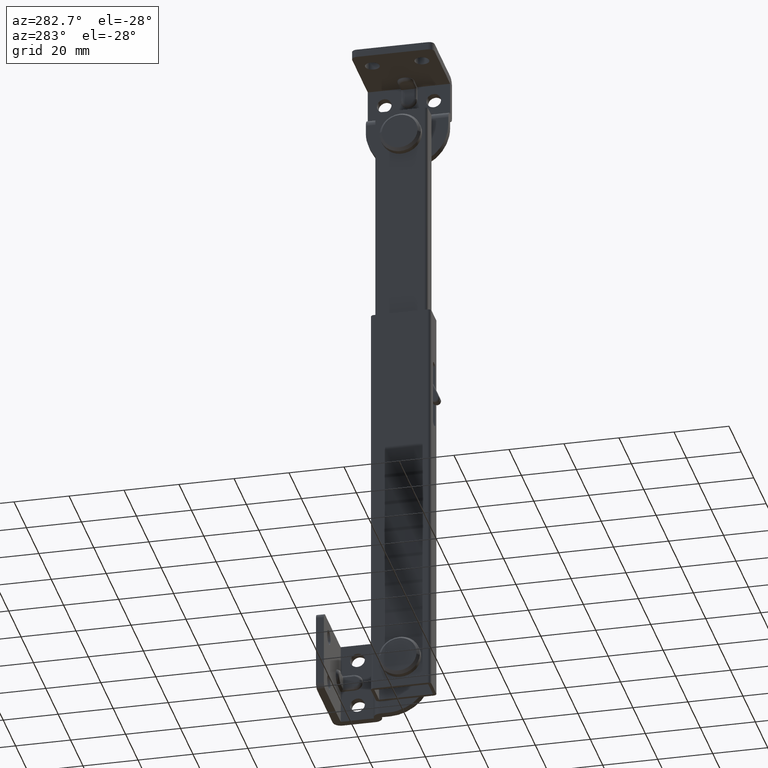
[diagram: clean part render]
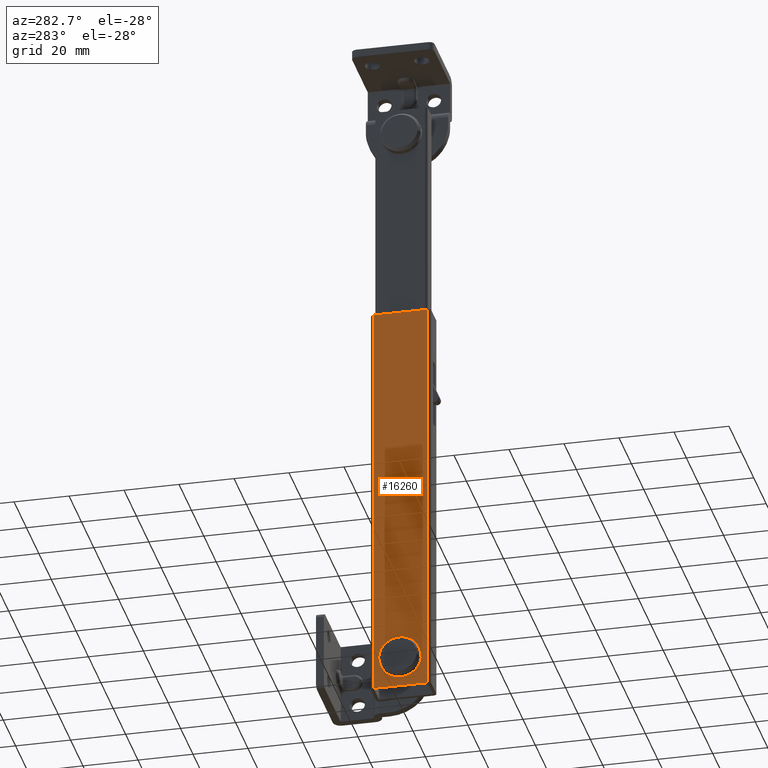
[diagram: same view with one face highlighted and labeled with its STEP entity id]
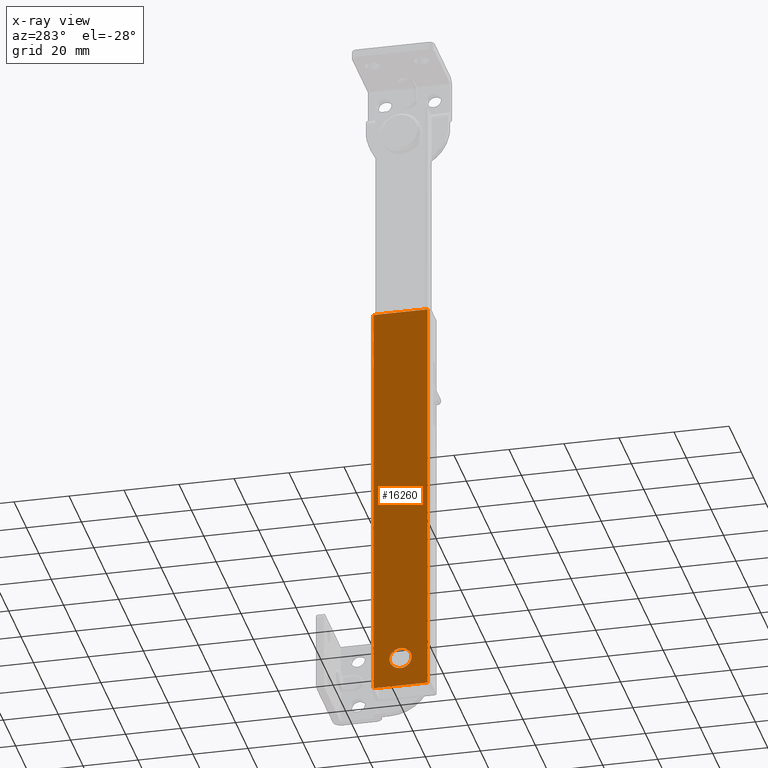
[diagram: x-ray of the same camera — body ghosted, the highlighted face saturated]
A machine part, auxiliary view. The second image highlights one B-rep face of the part: STEP entity #16260.
The next image is the same camera in x-ray: the body ghosted, the highlighted face saturated — about 0% of this face is hidden behind the body in this view.
In plain terms, the highlighted face is a freeform B-spline surface patch.
Its self-contained STEP definition (entity closure, byte-faithful):
#14889=CARTESIAN_POINT('',(-4.163336E-017,3.999847692242676,0.034906143598756));
#14890=VERTEX_POINT('',#14889);
#14896=CARTESIAN_POINT('',(0.0,0.0,-4.0));
#14897=VERTEX_POINT('',#14896);
#14898=CARTESIAN_POINT('',(0.0,0.0,-4.0));
#14899=CARTESIAN_POINT('',(0.0,4.000000000000000,-4.000000000000000));
#14900=CARTESIAN_POINT('',(0.0,4.0,0.0));
#14901=CARTESIAN_POINT('',(0.0,4.0,0.017453404888149));
#14902=CARTESIAN_POINT('',(-4.163336E-017,3.999847692242676,0.034906143598756));
#14910=(BOUNDED_CURVE()B_SPLINE_CURVE(2,(#14898,#14899,#14900,#14901,#14902),.UNSPECIFIED.,.F.,.U.)B_SPLINE_CURVE_WITH_KNOTS((3,2,3),(0.500000000000000,0.750000000000000,0.751539894476369),.UNSPECIFIED.)CURVE()GEOMETRIC_REPRESENTATION_ITEM()RATIONAL_B_SPLINE_CURVE((1.0,0.707106781186548,1.0,0.998195901400733,0.996414027773208))REPRESENTATION_ITEM(''));
#14911=EDGE_CURVE('',#14897,#14890,#14910,.T.);
#14913=CARTESIAN_POINT('',(-4.169633E-017,-3.969064855216169,-0.496512009006684));
#14914=VERTEX_POINT('',#14913);
#14915=CARTESIAN_POINT('',(-4.169633E-017,-3.969064855216168,-0.496512009006684));
#14916=CARTESIAN_POINT('',(0.0,-3.530794399368449,-4.000000000000001));
#14917=CARTESIAN_POINT('',(0.0,0.0,-4.0));
#14925=(BOUNDED_CURVE()B_SPLINE_CURVE(2,(#14915,#14916,#14917),.UNSPECIFIED.,.F.,.U.)B_SPLINE_CURVE_WITH_KNOTS((3,3),(0.271473929029114,0.500000000000000),.UNSPECIFIED.)CURVE()GEOMETRIC_REPRESENTATION_ITEM()RATIONAL_B_SPLINE_CURVE((0.954005430161362,0.732265053962183,1.0))REPRESENTATION_ITEM(''));
#14926=EDGE_CURVE('',#14914,#14897,#14925,.T.);
#14976=CARTESIAN_POINT('',(0.0,0.0,4.0));
#14977=VERTEX_POINT('',#14976);
#14978=CARTESIAN_POINT('',(0.0,0.0,4.0));
#14979=CARTESIAN_POINT('',(0.0,-4.000000000000000,4.000000000000000));
#14980=CARTESIAN_POINT('',(0.0,-4.0,0.0));
#14981=CARTESIAN_POINT('',(0.0,-4.0,-0.249219710829389));
#14982=CARTESIAN_POINT('',(-4.169633E-017,-3.969064855216168,-0.496512009006684));
#14990=(BOUNDED_CURVE()B_SPLINE_CURVE(2,(#14978,#14979,#14980,#14981,#14982),.UNSPECIFIED.,.F.,.U.)B_SPLINE_CURVE_WITH_KNOTS((3,2,3),(0.0,0.250000000000000,0.271473929029114),.UNSPECIFIED.)CURVE()GEOMETRIC_REPRESENTATION_ITEM()RATIONAL_B_SPLINE_CURVE((1.0,0.707106781186548,1.0,0.974841727224365,0.954005430161363))REPRESENTATION_ITEM(''));
#14991=EDGE_CURVE('',#14977,#14914,#14990,.T.);
#14993=CARTESIAN_POINT('',(-4.163336E-017,3.999847692242676,0.034906143598756));
#14994=CARTESIAN_POINT('',(0.0,3.965244839197045,4.000000000000001));
#14995=CARTESIAN_POINT('',(0.0,0.0,4.0));
#15003=(BOUNDED_CURVE()B_SPLINE_CURVE(2,(#14993,#14994,#14995),.UNSPECIFIED.,.F.,.U.)B_SPLINE_CURVE_WITH_KNOTS((3,3),(0.751539894476370,1.0),.UNSPECIFIED.)CURVE()GEOMETRIC_REPRESENTATION_ITEM()RATIONAL_B_SPLINE_CURVE((0.996414027773206,0.708910879785816,1.0))REPRESENTATION_ITEM(''));
#15004=EDGE_CURVE('',#14890,#14977,#15003,.T.);
#15789=CARTESIAN_POINT('',(-0.000003000000003,9.799999000000000,139.0));
#15790=VERTEX_POINT('',#15789);
#15804=CARTESIAN_POINT('',(0.0,-9.800003000000000,139.0));
#15805=VERTEX_POINT('',#15804);
#15806=CARTESIAN_POINT('',(-0.000003000000003,9.799999000000000,139.0));
#15807=CARTESIAN_POINT('',(0.0,-9.800003000000000,139.0));
#15808=QUASI_UNIFORM_CURVE('',1,(#15806,#15807),.UNSPECIFIED.,.F.,.U.);
#15809=EDGE_CURVE('',#15790,#15805,#15808,.T.);
#15871=CARTESIAN_POINT('',(0.0,-9.800003000000000,-11.0));
#15872=VERTEX_POINT('',#15871);
#15886=CARTESIAN_POINT('',(-0.000003000000003,9.799999000000000,-11.0));
#15887=VERTEX_POINT('',#15886);
#15888=CARTESIAN_POINT('',(-0.000003000000003,9.799999000000000,-11.0));
#15889=CARTESIAN_POINT('',(0.0,-9.800003000000000,-11.0));
#15890=QUASI_UNIFORM_CURVE('',1,(#15888,#15889),.UNSPECIFIED.,.F.,.U.);
#15891=EDGE_CURVE('',#15887,#15872,#15890,.T.);
#15998=CARTESIAN_POINT('',(0.0,-9.800003000000000,-11.0));
#15999=CARTESIAN_POINT('',(0.0,-9.800003000000000,139.0));
#16000=QUASI_UNIFORM_CURVE('',1,(#15998,#15999),.UNSPECIFIED.,.F.,.U.);
#16001=EDGE_CURVE('',#15872,#15805,#16000,.T.);
#16033=CARTESIAN_POINT('',(-0.000003000000003,9.799999000000000,-11.0));
#16034=CARTESIAN_POINT('',(-0.000003000000003,9.799999000000000,139.0));
#16035=QUASI_UNIFORM_CURVE('',1,(#16033,#16034),.UNSPECIFIED.,.F.,.U.);
#16036=EDGE_CURVE('',#15887,#15790,#16035,.T.);
#16243=CARTESIAN_POINT('',(0.0,10.779019429892980,-18.492499709270898));
#16244=CARTESIAN_POINT('',(0.0,10.779019429892980,146.492503732584400));
#16245=CARTESIAN_POINT('',(0.0,-10.779023605130661,-18.492499709270898));
#16246=CARTESIAN_POINT('',(0.0,-10.779023605130661,146.492503732584400));
#16247=B_SPLINE_SURFACE_WITH_KNOTS('',1,1,((#16243,#16245),(#16244,#16246)),.UNSPECIFIED.,.F.,.F.,.U.,(2,2),(2,2),(0.0,164.985003441855300),(0.0,21.558043035023640),.UNSPECIFIED.);
#16248=ORIENTED_EDGE('',*,*,#15809,.F.);
#16249=ORIENTED_EDGE('',*,*,#16036,.F.);
#16250=ORIENTED_EDGE('',*,*,#15891,.T.);
#16251=ORIENTED_EDGE('',*,*,#16001,.T.);
#16252=EDGE_LOOP('',(#16248,#16249,#16250,#16251));
#16253=FACE_OUTER_BOUND('',#16252,.T.);
#16254=ORIENTED_EDGE('',*,*,#14911,.T.);
#16255=ORIENTED_EDGE('',*,*,#15004,.T.);
#16256=ORIENTED_EDGE('',*,*,#14991,.T.);
#16257=ORIENTED_EDGE('',*,*,#14926,.T.);
#16258=EDGE_LOOP('',(#16254,#16255,#16256,#16257));
#16259=FACE_BOUND('',#16258,.T.);
#16260=ADVANCED_FACE('',(#16253,#16259),#16247,.F.);